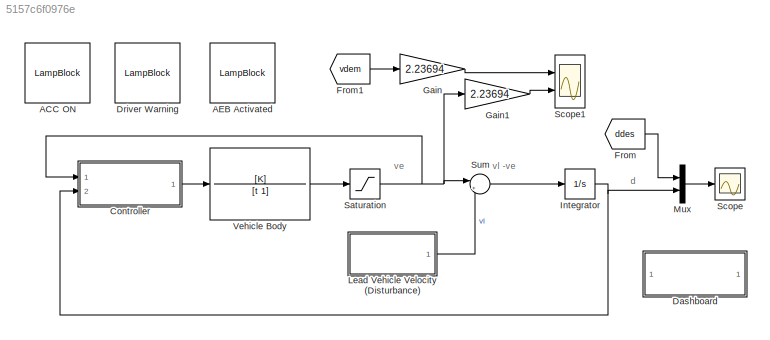
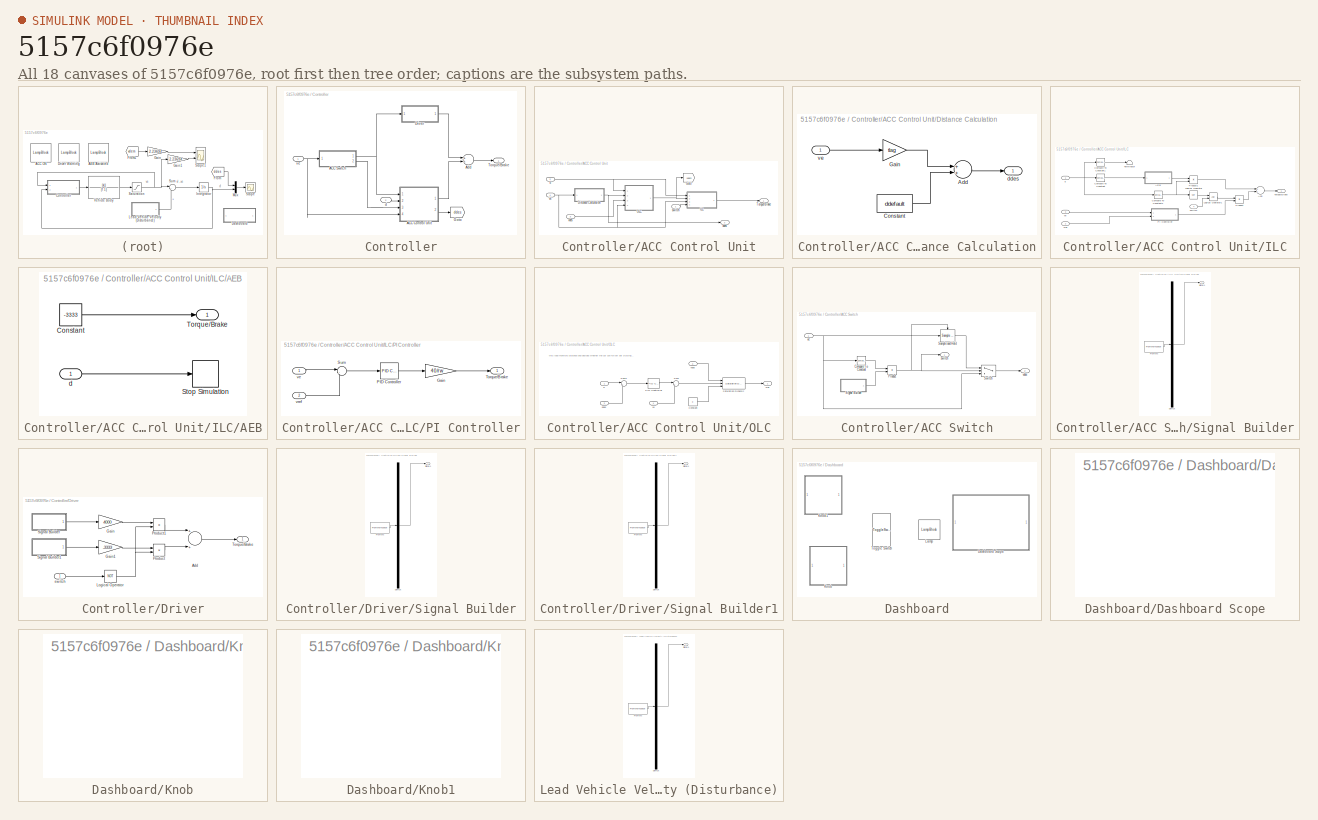
[diagram: thumbnail index - all 18 canvases of the model, root first then tree order]
MODEL slx_5157c6f0976e
KIND model
CONFIG AbsTol = auto
CONFIG EnableMultiTasking = off
CONFIG FixedStep = auto
CONFIG MaxStep = 0.01
CONFIG MinStep = auto
CONFIG RelTol = 1e-3
CONFIG SampleTimeConstraint = Unconstrained
CONFIG Solver = ode23t
CONFIG SolverName = ode23t
CONFIG StartTime = 0.0
CONFIG StopTime = 150
BLOCK [LampBlock] ACC ON
  WebBlockId = 122
BLOCK [LampBlock] AEB Activated
  WebBlockId = 120
BLOCK [SubSystem] Controller
  Ports = [2, 1]
  RequestExecContextInheritance = off
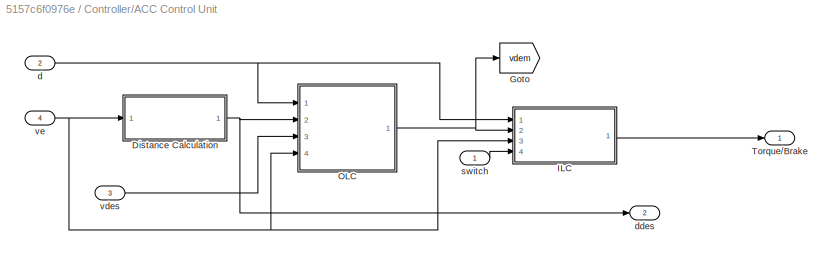
BLOCK [SubSystem] Controller/ACC Control Unit
  Ports = [4, 2]
  RequestExecContextInheritance = off
BLOCK [SubSystem] Controller/ACC Control Unit/Distance Calculation
  Ports = [1, 1]
  RequestExecContextInheritance = off
BLOCK [Sum] Controller/ACC Control Unit/Distance Calculation/Add
  InputSameDT = off
  OutDataTypeStr = Inherit: Inherit via internal rule
  Ports = [2, 1]
  SaturateOnIntegerOverflow = off
BLOCK [Constant] Controller/ACC Control Unit/Distance Calculation/Constant
  Value = ddefault
BLOCK [Gain] Controller/ACC Control Unit/Distance Calculation/Gain
  Gain = tlag
  OutDataTypeStr = Inherit: Inherit via internal rule
  ParamDataTypeStr = Inherit: Inherit via internal rule
  SaturateOnIntegerOverflow = off
BLOCK [Outport] Controller/ACC Control Unit/Distance Calculation/ddes
  IconDisplay = Port number
BLOCK [Inport] Controller/ACC Control Unit/Distance Calculation/ve
  IconDisplay = Port number
BLOCK [Goto] Controller/ACC Control Unit/Goto
  GotoTag = vdem
  TagVisibility = global
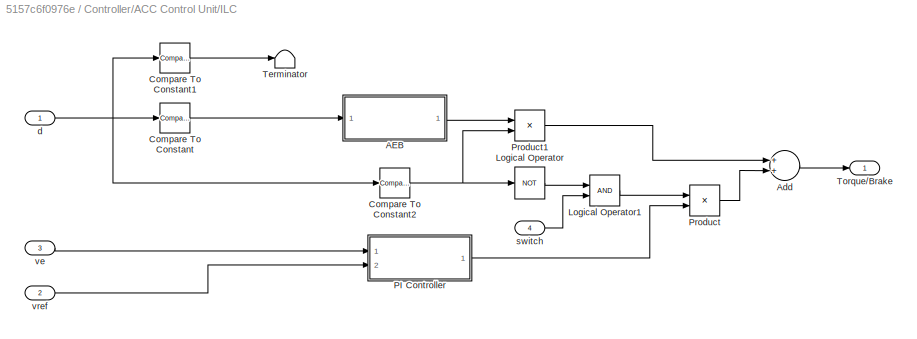
BLOCK [SubSystem] Controller/ACC Control Unit/ILC
  Ports = [4, 1]
  RequestExecContextInheritance = off
BLOCK [SubSystem] Controller/ACC Control Unit/ILC/AEB
  Ports = [1, 1]
  RequestExecContextInheritance = off
BLOCK [Constant] Controller/ACC Control Unit/ILC/AEB/Constant
  Value = -3333
BLOCK [Stop] Controller/ACC Control Unit/ILC/AEB/Stop Simulation
BLOCK [Outport] Controller/ACC Control Unit/ILC/AEB/Torque//Brake
  IconDisplay = Port number
BLOCK [Inport] Controller/ACC Control Unit/ILC/AEB/d
  IconDisplay = Port number
BLOCK [Sum] Controller/ACC Control Unit/ILC/Add
  InputSameDT = off
  OutDataTypeStr = Inherit: Inherit via internal rule
  Ports = [2, 1]
  SaturateOnIntegerOverflow = off
BLOCK [Reference] Controller/ACC Control Unit/ILC/Compare To Constant  REF=simulink/Logic and Bit
Operations/Compare
To Constant
  Ports = [1, 1]
  SourceBlock = simulink/Logic and Bit\nOperations/Compare\nTo Constant
  SourceProductBaseCode = SL
  SourceProductName = Simulink
  SourceType = Compare To Constant
BLOCK [Reference] Controller/ACC Control Unit/ILC/Compare To Constant1  REF=simulink/Logic and Bit
Operations/Compare
To Constant
  Ports = [1, 1]
  SourceBlock = simulink/Logic and Bit\nOperations/Compare\nTo Constant
  SourceProductBaseCode = SL
  SourceProductName = Simulink
  SourceType = Compare To Constant
BLOCK [Reference] Controller/ACC Control Unit/ILC/Compare To Constant2  REF=simulink/Logic and Bit
Operations/Compare
To Constant
  Ports = [1, 1]
  SourceBlock = simulink/Logic and Bit\nOperations/Compare\nTo Constant
  SourceProductBaseCode = SL
  SourceProductName = Simulink
  SourceType = Compare To Constant
BLOCK [Logic] Controller/ACC Control Unit/ILC/Logical Operator
  AllPortsSameDT = off
  Operator = NOT
  OutDataTypeStr = boolean
  Ports = [1, 1]
BLOCK [Logic] Controller/ACC Control Unit/ILC/Logical Operator1
  AllPortsSameDT = off
  OutDataTypeStr = boolean
  Ports = [2, 1]
BLOCK [SubSystem] Controller/ACC Control Unit/ILC/PI Controller
  Ports = [2, 1]
  RequestExecContextInheritance = off
BLOCK [Gain] Controller/ACC Control Unit/ILC/PI Controller/Gain
  Gain = 40/rw
  OutDataTypeStr = Inherit: Inherit via internal rule
  ParamDataTypeStr = Inherit: Inherit via internal rule
  SaturateOnIntegerOverflow = off
BLOCK [Reference] Controller/ACC Control Unit/ILC/PI Controller/PID Controller  REF=simulink/Continuous/PID Controller
  Ports = [1, 1]
  SourceBlock = simulink/Continuous/PID Controller
  SourceProductBaseCode = SL
  SourceProductName = Simulink
  SourceType = PID 1dof
BLOCK [Sum] Controller/ACC Control Unit/ILC/PI Controller/Sum
  IconShape = round
  InputSameDT = off
  Inputs = |-+
  OutDataTypeStr = Inherit: Inherit via internal rule
  Ports = [2, 1]
  SaturateOnIntegerOverflow = off
BLOCK [Outport] Controller/ACC Control Unit/ILC/PI Controller/Torque//Brake
  IconDisplay = Port number
BLOCK [Inport] Controller/ACC Control Unit/ILC/PI Controller/ve
  IconDisplay = Port number
BLOCK [Inport] Controller/ACC Control Unit/ILC/PI Controller/vref
  IconDisplay = Port number
  Port = 2
BLOCK [Product] Controller/ACC Control Unit/ILC/Product
  InputSameDT = off
  OutDataTypeStr = Inherit: Inherit via internal rule
  Ports = [2, 1]
  RndMeth = Floor
  SaturateOnIntegerOverflow = off
BLOCK [Product] Controller/ACC Control Unit/ILC/Product1
  InputSameDT = off
  OutDataTypeStr = Inherit: Inherit via internal rule
  Ports = [2, 1]
  RndMeth = Floor
  SaturateOnIntegerOverflow = off
BLOCK [Terminator] Controller/ACC Control Unit/ILC/Terminator
BLOCK [Outport] Controller/ACC Control Unit/ILC/Torque//Brake
  IconDisplay = Port number
BLOCK [Inport] Controller/ACC Control Unit/ILC/d
  IconDisplay = Port number
BLOCK [Inport] Controller/ACC Control Unit/ILC/switch
  IconDisplay = Port number
  Port = 4
BLOCK [Inport] Controller/ACC Control Unit/ILC/ve
  IconDisplay = Port number
  Port = 3
BLOCK [Inport] Controller/ACC Control Unit/ILC/vref
  IconDisplay = Port number
  Port = 2
BLOCK [SubSystem] Controller/ACC Control Unit/OLC
  Ports = [4, 1]
  RequestExecContextInheritance = off
BLOCK [Constant] Controller/ACC Control Unit/OLC/Constant
  Value = 0
BLOCK [Reference] Controller/ACC Control Unit/OLC/PID Controller  REF=simulink/Continuous/PID Controller
  Ports = [1, 1]
  SourceBlock = simulink/Continuous/PID Controller
  SourceProductBaseCode = SL
  SourceProductName = Simulink
  SourceType = PID 1dof
BLOCK [Reference] Controller/ACC Control Unit/OLC/Saturation Dynamic  REF=simulink/Discontinuities/Saturation
Dynamic
  Ports = [3, 1]
  SourceBlock = simulink/Discontinuities/Saturation\nDynamic
  SourceProductBaseCode = SL
  SourceProductName = Simulink
  SourceType = Saturation Dynamic
BLOCK [Sum] Controller/ACC Control Unit/OLC/Sum
  IconShape = round
  InputSameDT = off
  Inputs = |++
  OutDataTypeStr = Inherit: Inherit via internal rule
  Ports = [2, 1]
  SaturateOnIntegerOverflow = off
BLOCK [Sum] Controller/ACC Control Unit/OLC/Sum1
  IconShape = round
  InputSameDT = off
  Inputs = |+-
  OutDataTypeStr = Inherit: Inherit via internal rule
  Ports = [2, 1]
  SaturateOnIntegerOverflow = off
BLOCK [Inport] Controller/ACC Control Unit/OLC/d
  IconDisplay = Port number
BLOCK [Inport] Controller/ACC Control Unit/OLC/ddes
  IconDisplay = Port number
  Port = 2
BLOCK [Inport] Controller/ACC Control Unit/OLC/vdes
  IconDisplay = Port number
  Port = 3
BLOCK [Inport] Controller/ACC Control Unit/OLC/ve
  IconDisplay = Port number
  Port = 4
BLOCK [Outport] Controller/ACC Control Unit/OLC/vref
  IconDisplay = Port number
BLOCK [Outport] Controller/ACC Control Unit/Torque//Brake
  IconDisplay = Port number
BLOCK [Inport] Controller/ACC Control Unit/d
  IconDisplay = Port number
  Port = 2
BLOCK [Outport] Controller/ACC Control Unit/ddes
  IconDisplay = Port number
  Port = 2
BLOCK [Inport] Controller/ACC Control Unit/switch
  IconDisplay = Port number
BLOCK [Inport] Controller/ACC Control Unit/vdes
  IconDisplay = Port number
  Port = 3
BLOCK [Inport] Controller/ACC Control Unit/ve
  IconDisplay = Port number
  Port = 4
BLOCK [SubSystem] Controller/ACC Switch
  Ports = [1, 2]
  RequestExecContextInheritance = off
BLOCK [Reference] Controller/ACC Switch/Compare To Constant  REF=simulink/Logic and Bit
Operations/Compare
To Constant
  Ports = [1, 1]
  SourceBlock = simulink/Logic and Bit\nOperations/Compare\nTo Constant
  SourceProductBaseCode = SL
  SourceProductName = Simulink
  SourceType = Compare To Constant
BLOCK [Product] Controller/ACC Switch/Product
  InputSameDT = off
  OutDataTypeStr = Inherit: Inherit via internal rule
  Ports = [2, 1]
  RndMeth = Floor
  SaturateOnIntegerOverflow = off
BLOCK [Reference] Controller/ACC Switch/Sample and Hold  REF=dspsigops/Sample
and Hold
  Ports = [1, 1, 0, 1]
  SourceBlock = dspsigops/Sample\nand Hold
  SourceProductBaseCode = DS
  SourceProductName = DSP System Toolbox
  SourceType = Sample and Hold
BLOCK [SubSystem] Controller/ACC Switch/Signal Builder
  ClipboardFcn = sigbuilder_block('clipboard');
  CloseFcn = sigbuilder_block('close');
  ContinueFcn = sigbuilder_block('continue');
  CopyFcn = sigbuilder_block('copy');
  DeleteFcn = sigbuilder_block('delete');
  LoadFcn = sigbuilder_block('load');
  MaskHideContents = on
  ModelCloseFcn = sigbuilder_block('modelClose');
  NameChangeFcn = sigbuilder_block('namechange');
  OpenFcn = sigbuilder_block('open',[453.6 160.2 550.8 400.2 ]);
  PauseFcn = sigbuilder_block('pause');
  Ports = [0, 1]
  PreSaveFcn = sigbuilder_block('preSave');
  RequestExecContextInheritance = off
  StartFcn = sigbuilder_block('start');
  StopFcn = sigbuilder_block('stop');
  Tag = STV Subsys
BLOCK [Demux] Controller/ACC Switch/Signal Builder/Demux
  Outputs = 1
  Ports = [1, 1]
  Tag = STV Demux
BLOCK [FromWorkspace] Controller/ACC Switch/Signal Builder/FromWs
  SampleTime = 0
  Tag = STV FromWs
  VariableName = tuvar
  ZeroCross = on
BLOCK [Outport] Controller/ACC Switch/Signal Builder/Signal 1
  IconDisplay = Port number
  Tag = STV Outport
BLOCK [Switch] Controller/ACC Switch/Switch
  Criteria = u2 > Threshold
  InputSameDT = off
  SaturateOnIntegerOverflow = off
BLOCK [Outport] Controller/ACC Switch/switch
  IconDisplay = Port number
BLOCK [Outport] Controller/ACC Switch/vdes
  IconDisplay = Port number
  Port = 2
BLOCK [Inport] Controller/ACC Switch/ve
  IconDisplay = Port number
BLOCK [Sum] Controller/Add
  InputSameDT = off
  OutDataTypeStr = Inherit: Inherit via internal rule
  Ports = [2, 1]
  SaturateOnIntegerOverflow = off
BLOCK [SubSystem] Controller/Driver
  Ports = [1, 1]
  RequestExecContextInheritance = off
BLOCK [Sum] Controller/Driver/Add
  InputSameDT = off
  OutDataTypeStr = Inherit: Inherit via internal rule
  Ports = [2, 1]
  SaturateOnIntegerOverflow = off
BLOCK [Gain] Controller/Driver/Gain
  Gain = 4000
  OutDataTypeStr = Inherit: Inherit via internal rule
  ParamDataTypeStr = Inherit: Inherit via internal rule
  SaturateOnIntegerOverflow = off
BLOCK [Gain] Controller/Driver/Gain1
  Gain = -3333
  OutDataTypeStr = Inherit: Inherit via internal rule
  ParamDataTypeStr = Inherit: Inherit via internal rule
  SaturateOnIntegerOverflow = off
BLOCK [Logic] Controller/Driver/Logical Operator
  AllPortsSameDT = off
  Operator = NOT
  OutDataTypeStr = boolean
  Ports = [1, 1]
BLOCK [Product] Controller/Driver/Product
  InputSameDT = off
  OutDataTypeStr = Inherit: Inherit via internal rule
  Ports = [2, 1]
  RndMeth = Floor
  SaturateOnIntegerOverflow = off
BLOCK [Product] Controller/Driver/Product1
  InputSameDT = off
  OutDataTypeStr = Inherit: Inherit via internal rule
  Ports = [2, 1]
  RndMeth = Floor
  SaturateOnIntegerOverflow = off
BLOCK [SubSystem] Controller/Driver/Signal Builder
  ClipboardFcn = sigbuilder_block('clipboard');
  CloseFcn = sigbuilder_block('close');
  ContinueFcn = sigbuilder_block('continue');
  CopyFcn = sigbuilder_block('copy');
  DeleteFcn = sigbuilder_block('delete');
  LoadFcn = sigbuilder_block('load');
  MaskHideContents = on
  ModelCloseFcn = sigbuilder_block('modelClose');
  NameChangeFcn = sigbuilder_block('namechange');
  OpenFcn = sigbuilder_block('open',[470.4 157.8 550.8 400.2 ]);
  PauseFcn = sigbuilder_block('pause');
  Ports = [0, 1]
  PreSaveFcn = sigbuilder_block('preSave');
  RequestExecContextInheritance = off
  StartFcn = sigbuilder_block('start');
  StopFcn = sigbuilder_block('stop');
  Tag = STV Subsys
BLOCK [Demux] Controller/Driver/Signal Builder/Demux
  Outputs = 1
  Ports = [1, 1]
  Tag = STV Demux
BLOCK [FromWorkspace] Controller/Driver/Signal Builder/FromWs
  SampleTime = 0
  Tag = STV FromWs
  VariableName = tuvar
  ZeroCross = on
BLOCK [Outport] Controller/Driver/Signal Builder/Signal 1
  IconDisplay = Port number
  Tag = STV Outport
BLOCK [SubSystem] Controller/Driver/Signal Builder1
  ClipboardFcn = sigbuilder_block('clipboard');
  CloseFcn = sigbuilder_block('close');
  ContinueFcn = sigbuilder_block('continue');
  CopyFcn = sigbuilder_block('copy');
  DeleteFcn = sigbuilder_block('delete');
  LoadFcn = sigbuilder_block('load');
  MaskHideContents = on
  ModelCloseFcn = sigbuilder_block('modelClose');
  NameChangeFcn = sigbuilder_block('namechange');
  OpenFcn = sigbuilder_block('open',[470.4 157.8 550.8 400.2 ]);
  PauseFcn = sigbuilder_block('pause');
  Ports = [0, 1]
  PreSaveFcn = sigbuilder_block('preSave');
  RequestExecContextInheritance = off
  StartFcn = sigbuilder_block('start');
  StopFcn = sigbuilder_block('stop');
  Tag = STV Subsys
BLOCK [Demux] Controller/Driver/Signal Builder1/Demux
  Outputs = 1
  Ports = [1, 1]
  Tag = STV Demux
BLOCK [FromWorkspace] Controller/Driver/Signal Builder1/FromWs
  SampleTime = 0
  Tag = STV FromWs
  VariableName = tuvar
  ZeroCross = on
BLOCK [Outport] Controller/Driver/Signal Builder1/Signal 1
  IconDisplay = Port number
  Tag = STV Outport
BLOCK [Outport] Controller/Driver/Torque//Brake
  IconDisplay = Port number
BLOCK [Inport] Controller/Driver/switch
  IconDisplay = Port number
BLOCK [Goto] Controller/Goto
  GotoTag = ddes
  TagVisibility = global
BLOCK [Outport] Controller/Torque//Brake
  IconDisplay = Port number
BLOCK [Inport] Controller/d
  IconDisplay = Port number
  Port = 2
BLOCK [Inport] Controller/ve
  IconDisplay = Port number
BLOCK [SubSystem] Dashboard
  Ports = []
  RequestExecContextInheritance = off
BLOCK [SubSystem] Dashboard/Dashboard Scope
  DialogController = hmiCreateDDGDialog
  IsWebBlock = on
  MaskHideContents = on
  Ports = []
  RequestExecContextInheritance = off
BLOCK [SubSystem] Dashboard/Knob
  DialogController = hmiCreateDDGDialog
  IsWebBlock = on
  MaskHideContents = on
  Ports = []
  RequestExecContextInheritance = off
BLOCK [SubSystem] Dashboard/Knob1
  DialogController = hmiCreateDDGDialog
  IsWebBlock = on
  MaskHideContents = on
  Ports = []
  RequestExecContextInheritance = off
BLOCK [LampBlock] Dashboard/Lamp
  WebBlockId = 128
BLOCK [ToggleSwitchBlock] Dashboard/Toggle Switch
  WebBlockId = 129
BLOCK [LampBlock] Driver Warning
  WebBlockId = 121
BLOCK [From] From
  GotoTag = ddes
  TagVisibility = global
BLOCK [From] From1
  GotoTag = vdem
  TagVisibility = global
BLOCK [Gain] Gain
  Gain = 2.23694
  OutDataTypeStr = Inherit: Inherit via internal rule
  ParamDataTypeStr = Inherit: Inherit via internal rule
  SaturateOnIntegerOverflow = off
BLOCK [Gain] Gain1
  Gain = 2.23694
  OutDataTypeStr = Inherit: Inherit via internal rule
  ParamDataTypeStr = Inherit: Inherit via internal rule
  SaturateOnIntegerOverflow = off
BLOCK [Integrator] Integrator
  InitialCondition = 100
  Ports = [1, 1]
BLOCK [SubSystem] Lead Vehicle Velocity (Disturbance)
  ClipboardFcn = sigbuilder_block('clipboard');
  CloseFcn = sigbuilder_block('close');
  ContinueFcn = sigbuilder_block('continue');
  CopyFcn = sigbuilder_block('copy');
  DeleteFcn = sigbuilder_block('delete');
  LoadFcn = sigbuilder_block('load');
  MaskHideContents = on
  ModelCloseFcn = sigbuilder_block('modelClose');
  NameChangeFcn = sigbuilder_block('namechange');
  OpenFcn = sigbuilder_block('open',[456.6 167.4 550.8 400.2 ]);
  PauseFcn = sigbuilder_block('pause');
  Ports = [0, 1]
  PreSaveFcn = sigbuilder_block('preSave');
  RequestExecContextInheritance = off
  StartFcn = sigbuilder_block('start');
  StopFcn = sigbuilder_block('stop');
  Tag = STV Subsys
BLOCK [Demux] Lead Vehicle Velocity (Disturbance)/Demux
  Outputs = 1
  Ports = [1, 1]
  Tag = STV Demux
BLOCK [FromWorkspace] Lead Vehicle Velocity (Disturbance)/FromWs
  SampleTime = 0
  Tag = STV FromWs
  VariableName = tuvar
  ZeroCross = on
BLOCK [Outport] Lead Vehicle Velocity (Disturbance)/Signal 1
  IconDisplay = Port number
  Tag = STV Outport
BLOCK [Mux] Mux
  DisplayOption = bar
  Inputs = 2
  Ports = [2, 1]
BLOCK [Saturate] Saturation
  InputPortMap = u0
  LowerLimit = 0
  Ports = [1, 1]
  UpperLimit = Inf
  ZeroCross = off
BLOCK [Scope] Scope
  Floating = off
  NumInputPorts = 1
  Ports = [1]
  ScopeSpecificationString = Simulink.scopes.TimeScopeBlockCfg('CurrentConfiguration', extmgr.ConfigurationSet(extmgr.Configuration('Core','General UI',true),extmgr.Configuration('Core','Source UI',true),extmgr.Configuration('Sources','WiredSimulink',true),extmgr.Configuration('Visuals','Time Domain',true,'SerializedDisplays',{struct('MinYLimReal','-12.5','MaxYLimReal','112.5','YLabelReal','','MinYLimMag','0.00000','MaxYLimMa...<+1360ch>
BLOCK [Scope] Scope1
  Floating = off
  NumInputPorts = 2
  Ports = [2]
  ScopeSpecificationString = Simulink.scopes.TimeScopeBlockCfg('CurrentConfiguration', extmgr.ConfigurationSet(extmgr.Configuration('Core','General UI',true),extmgr.Configuration('Core','Source UI',true),extmgr.Configuration('Sources','WiredSimulink',true,'DataLoggingVariableName','ScopeData1'),extmgr.Configuration('Visuals','Time Domain',true,'SerializedDisplays',{struct('MinYLimReal','-4.07055','MaxYLimReal','36.63492','YLa...<+1400ch>
BLOCK [Sum] Sum
  IconShape = round
  InputSameDT = off
  Inputs = |+-
  OutDataTypeStr = Inherit: Inherit via internal rule
  Ports = [2, 1]
  SaturateOnIntegerOverflow = off
BLOCK [TransferFcn] Vehicle Body
  Denominator = [t 1]
  Numerator = [K]
ANNOTATION (root): d
ANNOTATION (root): ve
ANNOTATION (root): vl -ve
ANNOTATION Controller/ACC Control Unit/OLC: this loop monitors distance and decides whether the car can follow set cruising speed or needs to slow down in order to maintain the desired distance from the lead car
LINE Controller/ACC Control Unit/Distance Calculation/Add:1 -> Controller/ACC Control Unit/Distance Calculation/ddes:1
LINE Controller/ACC Control Unit/Distance Calculation/Constant:1 -> Controller/ACC Control Unit/Distance Calculation/Add:2
LINE Controller/ACC Control Unit/Distance Calculation/Gain:1 -> Controller/ACC Control Unit/Distance Calculation/Add:1
LINE Controller/ACC Control Unit/Distance Calculation/ve:1 -> Controller/ACC Control Unit/Distance Calculation/Gain:1
NET Controller/ACC Control Unit/Distance Calculation:1 -> Controller/ACC Control Unit/OLC:2, Controller/ACC Control Unit/ddes:1
LINE Controller/ACC Control Unit/ILC/AEB/Constant:1 -> Controller/ACC Control Unit/ILC/AEB/Torque//Brake:1
LINE Controller/ACC Control Unit/ILC/AEB/d:1 -> Controller/ACC Control Unit/ILC/AEB/Stop Simulation:1
LINE Controller/ACC Control Unit/ILC/AEB:1 -> Controller/ACC Control Unit/ILC/Product1:1
LINE Controller/ACC Control Unit/ILC/Add:1 -> Controller/ACC Control Unit/ILC/Torque//Brake:1
LINE Controller/ACC Control Unit/ILC/Compare To Constant1:1 -> Controller/ACC Control Unit/ILC/Terminator:1
NET Controller/ACC Control Unit/ILC/Compare To Constant2:1 -> Controller/ACC Control Unit/ILC/Logical Operator:1, Controller/ACC Control Unit/ILC/Product1:2
LINE Controller/ACC Control Unit/ILC/Compare To Constant:1 -> Controller/ACC Control Unit/ILC/AEB:1
LINE Controller/ACC Control Unit/ILC/Logical Operator1:1 -> Controller/ACC Control Unit/ILC/Product:1
LINE Controller/ACC Control Unit/ILC/Logical Operator:1 -> Controller/ACC Control Unit/ILC/Logical Operator1:1
LINE Controller/ACC Control Unit/ILC/PI Controller/Gain:1 -> Controller/ACC Control Unit/ILC/PI Controller/Torque//Brake:1
LINE Controller/ACC Control Unit/ILC/PI Controller/PID Controller:1 -> Controller/ACC Control Unit/ILC/PI Controller/Gain:1
LINE Controller/ACC Control Unit/ILC/PI Controller/Sum:1 -> Controller/ACC Control Unit/ILC/PI Controller/PID Controller:1
LINE Controller/ACC Control Unit/ILC/PI Controller/ve:1 -> Controller/ACC Control Unit/ILC/PI Controller/Sum:1
LINE Controller/ACC Control Unit/ILC/PI Controller/vref:1 -> Controller/ACC Control Unit/ILC/PI Controller/Sum:2
LINE Controller/ACC Control Unit/ILC/PI Controller:1 -> Controller/ACC Control Unit/ILC/Product:2
LINE Controller/ACC Control Unit/ILC/Product1:1 -> Controller/ACC Control Unit/ILC/Add:1
LINE Controller/ACC Control Unit/ILC/Product:1 -> Controller/ACC Control Unit/ILC/Add:2
NET Controller/ACC Control Unit/ILC/d:1 -> Controller/ACC Control Unit/ILC/Compare To Constant1:1, Controller/ACC Control Unit/ILC/Compare To Constant2:1, Controller/ACC Control Unit/ILC/Compare To Constant:1
LINE Controller/ACC Control Unit/ILC/switch:1 -> Controller/ACC Control Unit/ILC/Logical Operator1:2
LINE Controller/ACC Control Unit/ILC/ve:1 -> Controller/ACC Control Unit/ILC/PI Controller:1
LINE Controller/ACC Control Unit/ILC/vref:1 -> Controller/ACC Control Unit/ILC/PI Controller:2
LINE Controller/ACC Control Unit/ILC:1 -> Controller/ACC Control Unit/Torque//Brake:1
LINE Controller/ACC Control Unit/OLC/Constant:1 -> Controller/ACC Control Unit/OLC/Saturation Dynamic:3
LINE Controller/ACC Control Unit/OLC/PID Controller:1 -> Controller/ACC Control Unit/OLC/Sum:1
LINE Controller/ACC Control Unit/OLC/Saturation Dynamic:1 -> Controller/ACC Control Unit/OLC/vref:1
LINE Controller/ACC Control Unit/OLC/Sum1:1 -> Controller/ACC Control Unit/OLC/PID Controller:1
LINE Controller/ACC Control Unit/OLC/Sum:1 -> Controller/ACC Control Unit/OLC/Saturation Dynamic:2
LINE Controller/ACC Control Unit/OLC/d:1 -> Controller/ACC Control Unit/OLC/Sum1:1
LINE Controller/ACC Control Unit/OLC/ddes:1 -> Controller/ACC Control Unit/OLC/Sum1:2
LINE Controller/ACC Control Unit/OLC/vdes:1 -> Controller/ACC Control Unit/OLC/Saturation Dynamic:1
LINE Controller/ACC Control Unit/OLC/ve:1 -> Controller/ACC Control Unit/OLC/Sum:2
NET Controller/ACC Control Unit/OLC:1 -> Controller/ACC Control Unit/Goto:1, Controller/ACC Control Unit/ILC:2
NET Controller/ACC Control Unit/d:1 -> Controller/ACC Control Unit/ILC:1, Controller/ACC Control Unit/OLC:1
LINE Controller/ACC Control Unit/switch:1 -> Controller/ACC Control Unit/ILC:4
LINE Controller/ACC Control Unit/vdes:1 -> Controller/ACC Control Unit/OLC:3
NET Controller/ACC Control Unit/ve:1 -> Controller/ACC Control Unit/Distance Calculation:1, Controller/ACC Control Unit/ILC:3, Controller/ACC Control Unit/OLC:4
LINE Controller/ACC Control Unit:1 -> Controller/Add:2
LINE Controller/ACC Control Unit:2 -> Controller/Goto:1
LINE Controller/ACC Switch/Compare To Constant:1 -> Controller/ACC Switch/Product:1
NET Controller/ACC Switch/Product:1 -> Controller/ACC Switch/Sample and Hold:trigger, Controller/ACC Switch/Switch:2, Controller/ACC Switch/switch:1
LINE Controller/ACC Switch/Sample and Hold:1 -> Controller/ACC Switch/Switch:1
LINE Controller/ACC Switch/Signal Builder:1 -> Controller/ACC Switch/Product:2
LINE Controller/ACC Switch/Switch:1 -> Controller/ACC Switch/vdes:1
NET Controller/ACC Switch/ve:1 -> Controller/ACC Switch/Compare To Constant:1, Controller/ACC Switch/Sample and Hold:1, Controller/ACC Switch/Switch:3
NET Controller/ACC Switch:1 -> Controller/ACC Control Unit:1, Controller/Driver:1
LINE Controller/ACC Switch:2 -> Controller/ACC Control Unit:3
LINE Controller/Add:1 -> Controller/Torque//Brake:1
LINE Controller/Driver/Add:1 -> Controller/Driver/Torque//Brake:1
LINE Controller/Driver/Gain1:1 -> Controller/Driver/Product:1
LINE Controller/Driver/Gain:1 -> Controller/Driver/Product1:1
NET Controller/Driver/Logical Operator:1 -> Controller/Driver/Product1:2, Controller/Driver/Product:2
LINE Controller/Driver/Product1:1 -> Controller/Driver/Add:1
LINE Controller/Driver/Product:1 -> Controller/Driver/Add:2
LINE Controller/Driver/Signal Builder1:1 -> Controller/Driver/Gain1:1
LINE Controller/Driver/Signal Builder:1 -> Controller/Driver/Gain:1
LINE Controller/Driver/switch:1 -> Controller/Driver/Logical Operator:1
LINE Controller/Driver:1 -> Controller/Add:1
LINE Controller/d:1 -> Controller/ACC Control Unit:2
NET Controller/ve:1 -> Controller/ACC Control Unit:4, Controller/ACC Switch:1
LINE Controller:1 -> Vehicle Body:1
LINE From1:1 -> Gain:1
LINE From:1 -> Mux:1
LINE Gain1:1 -> Scope1:2
LINE Gain:1 -> Scope1:1
NET Integrator:1 -> Controller:2, Mux:2
LINE Lead Vehicle Velocity (Disturbance):1 -> Sum:2
LINE Mux:1 -> Scope:1
NET Saturation:1 -> Controller:1, Gain1:1, Sum:1
LINE Sum:1 -> Integrator:1
LINE Vehicle Body:1 -> Saturation:1
note: NET lines group one-source signal fan-out (src -> all destinations, sorted); 1:1 wires keep LINE
